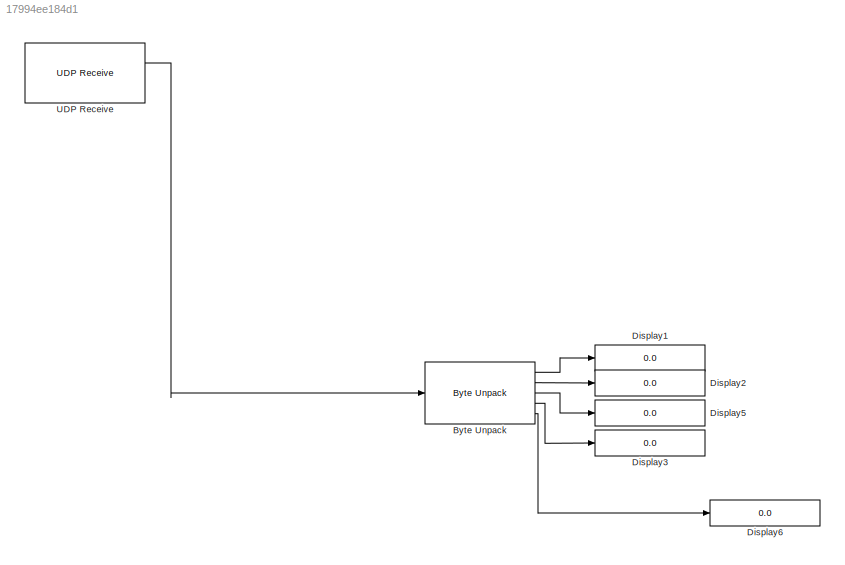
MODEL slx_17994ee184d1
KIND model
CONFIG AbsTol = auto
CONFIG EnableMultiTasking = on
CONFIG FixedStep = baseRate
CONFIG MaxStep = auto
CONFIG MinStep = auto
CONFIG RelTol = 1e-3
CONFIG SampleTimeConstraint = Unconstrained
CONFIG Solver = FixedStepAuto
CONFIG SolverName = FixedStepAuto
CONFIG StartTime = 0.0
CONFIG StopTime = inf
BLOCK [Reference] Byte Unpack  REF=etargetslib/Byte Unpack
  Ports = [1, 5]
  SourceBlock = etargetslib/Byte Unpack
  SourceProductBaseCode = ME
  SourceType = Byte Unpack
BLOCK [Display] Display1
  Decimation = 1
  Ports = [1]
BLOCK [Display] Display2
  Decimation = 1
  Ports = [1]
BLOCK [Display] Display3
  Decimation = 1
  Ports = [1]
BLOCK [Display] Display5
  Decimation = 1
  Ports = [1]
BLOCK [Display] Display6
  Decimation = 1
  Ports = [1]
BLOCK [Reference] UDP Receive  REF=embdlinuxlib/UDP Receive
  Ports = [0, 2]
  SourceBlock = embdlinuxlib/UDP Receive
  SourceProductBaseCode = SC_BEAGLEBONE_BLUE,RASPPI
  SourceType = UDP Receive
LINE Byte Unpack:1 -> Display1:1
LINE Byte Unpack:2 -> Display2:1
LINE Byte Unpack:3 -> Display5:1
LINE Byte Unpack:4 -> Display3:1
LINE Byte Unpack:5 -> Display6:1
LINE UDP Receive:1 -> Byte Unpack:1
